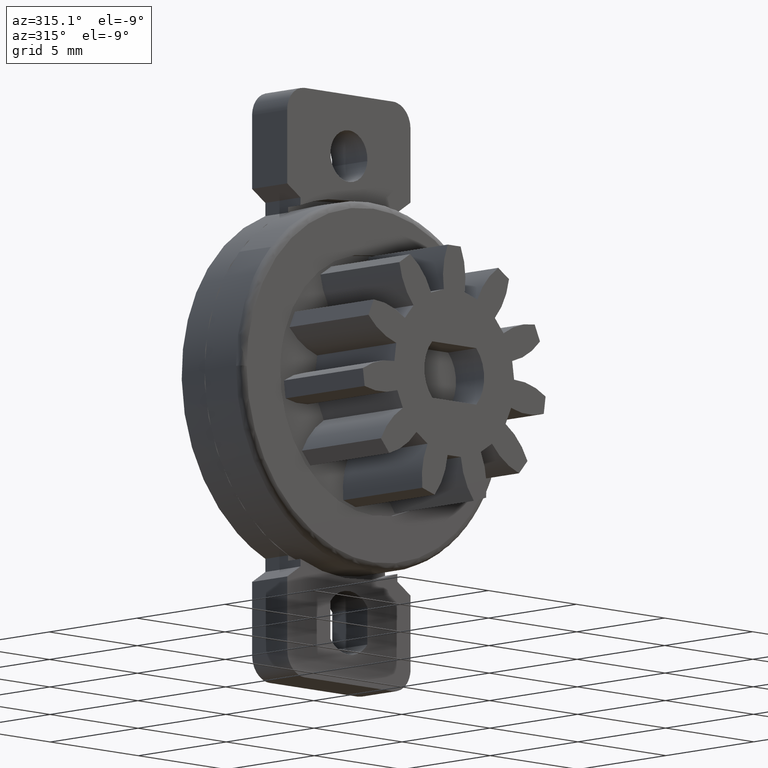
[diagram: clean part render]
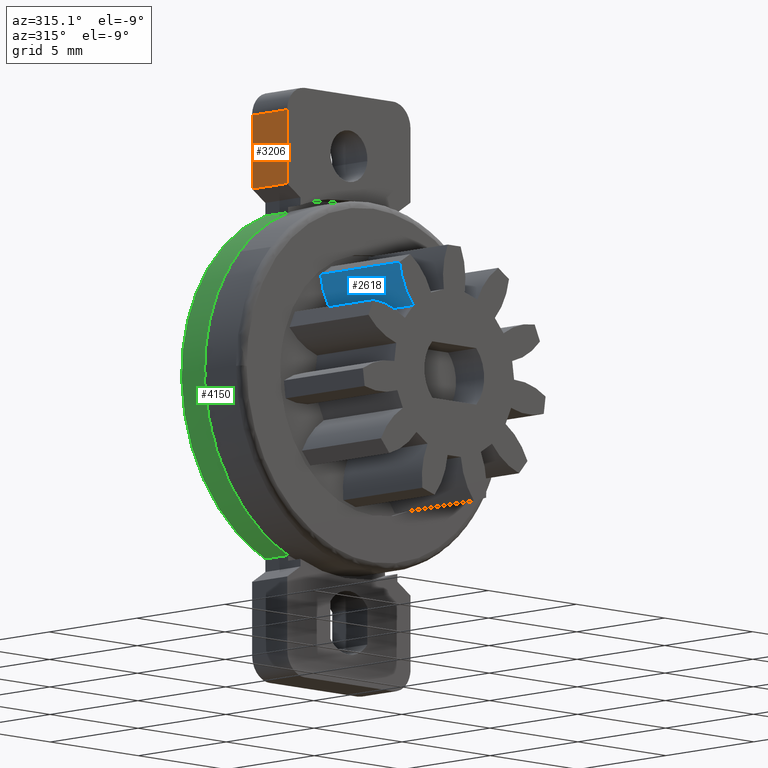
[diagram: same view with three faces highlighted in distinct colors, each labeled with its STEP entity id]
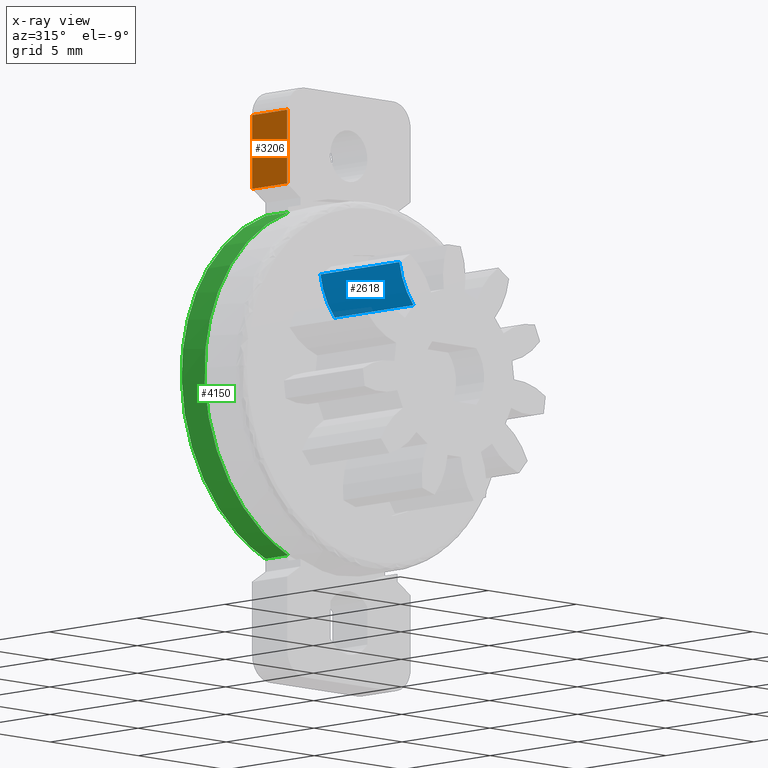
[diagram: x-ray of the same camera — body ghosted, the three highlighted faces saturated]
A machine part, auxiliary view with three faces highlighted in distinct colors.
The next image is the same camera in x-ray (body ghosted, the three faces saturated) — at least one of them is partly hidden behind the body in this view.
Their STEP definitions:

[orange] entity #3206 — the highlighted face is a freeform B-spline surface patch.
#3171=CARTESIAN_POINT('',(-3.500000000000000,-2.099899996123612,7.850150005814582));
#3172=CARTESIAN_POINT('',(-3.500000000000000,-2.099899996123612,11.149850074651690));
#3173=CARTESIAN_POINT('',(-3.500000000000000,0.099900049767792,7.850150005814582));
#3174=CARTESIAN_POINT('',(-3.500000000000000,0.099900049767792,11.149850074651690));
#3175=B_SPLINE_SURFACE_WITH_KNOTS('',1,1,((#3171,#3173),(#3172,#3174)),.UNSPECIFIED.,.F.,.F.,.U.,(2,2),(2,2),(0.0,3.299700068837108),(0.0,2.199800045891404),.UNSPECIFIED.);
#3176=CARTESIAN_POINT('',(-3.500000000000000,0.0,8.0));
#3177=VERTEX_POINT('',#3176);
#3178=CARTESIAN_POINT('',(-3.500000000000000,0.0,11.0));
#3179=VERTEX_POINT('',#3178);
#3180=CARTESIAN_POINT('',(-3.500000000000000,0.0,8.0));
#3181=CARTESIAN_POINT('',(-3.500000000000000,0.0,11.0));
#3182=QUASI_UNIFORM_CURVE('',1,(#3180,#3181),.UNSPECIFIED.,.F.,.U.);
#3183=EDGE_CURVE('',#3177,#3179,#3182,.T.);
#3184=ORIENTED_EDGE('',*,*,#3183,.F.);
#3185=CARTESIAN_POINT('',(-3.500000000000000,-2.0,8.0));
#3186=VERTEX_POINT('',#3185);
#3187=CARTESIAN_POINT('',(-3.500000000000000,-2.0,8.0));
#3188=CARTESIAN_POINT('',(-3.500000000000000,0.0,8.0));
#3189=QUASI_UNIFORM_CURVE('',1,(#3187,#3188),.UNSPECIFIED.,.F.,.U.);
#3190=EDGE_CURVE('',#3186,#3177,#3189,.T.);
#3191=ORIENTED_EDGE('',*,*,#3190,.F.);
#3192=CARTESIAN_POINT('',(-3.500000000000000,-2.0,11.0));
#3193=VERTEX_POINT('',#3192);
#3194=CARTESIAN_POINT('',(-3.500000000000000,-2.0,8.0));
#3195=CARTESIAN_POINT('',(-3.500000000000000,-2.0,11.0));
#3196=QUASI_UNIFORM_CURVE('',1,(#3194,#3195),.UNSPECIFIED.,.F.,.U.);
#3197=EDGE_CURVE('',#3186,#3193,#3196,.T.);
#3198=ORIENTED_EDGE('',*,*,#3197,.T.);
#3199=CARTESIAN_POINT('',(-3.500000000000000,-2.0,11.0));
#3200=CARTESIAN_POINT('',(-3.500000000000000,0.0,11.0));
#3201=QUASI_UNIFORM_CURVE('',1,(#3199,#3200),.UNSPECIFIED.,.F.,.U.);
#3202=EDGE_CURVE('',#3193,#3179,#3201,.T.);
#3203=ORIENTED_EDGE('',*,*,#3202,.T.);
#3204=EDGE_LOOP('',(#3184,#3191,#3198,#3203));
#3205=FACE_OUTER_BOUND('',#3204,.T.);
#3206=ADVANCED_FACE('',(#3205),#3175,.T.);

[blue] entity #2618 — the highlighted face is a freeform B-spline surface patch.
#479=CARTESIAN_POINT('',(-3.109634960589925,-8.0,4.167753640976990));
#480=VERTEX_POINT('',#479);
#494=CARTESIAN_POINT('',(-2.306931985027925,-8.0,2.497611822612775));
#495=VERTEX_POINT('',#494);
#496=CARTESIAN_POINT('',(-3.109634960589926,-8.0,4.167753640976989));
#497=CARTESIAN_POINT('',(-2.964505654421323,-8.0,3.209537316642833));
#498=CARTESIAN_POINT('',(-2.306931998105389,-8.0,2.497611810533708));
#506=(BOUNDED_CURVE()B_SPLINE_CURVE(2,(#496,#497,#498),.UNSPECIFIED.,.F.,.U.)CURVE()GEOMETRIC_REPRESENTATION_ITEM()QUASI_UNIFORM_CURVE()RATIONAL_B_SPLINE_CURVE((1.0,0.956011273868735,1.0))REPRESENTATION_ITEM(''));
#507=EDGE_CURVE('',#480,#495,#506,.T.);
#1573=CARTESIAN_POINT('',(-2.306931985027925,-3.499999999999950,2.497611822612775));
#1574=VERTEX_POINT('',#1573);
#1588=CARTESIAN_POINT('',(-3.109634960589925,-3.499999999999950,4.167753640976990));
#1589=VERTEX_POINT('',#1588);
#1590=CARTESIAN_POINT('',(-3.109634960589926,-3.499999999999950,4.167753640976989));
#1591=CARTESIAN_POINT('',(-2.964505654421323,-3.499999999999950,3.209537316642833));
#1592=CARTESIAN_POINT('',(-2.306931998105389,-3.499999999999950,2.497611810533708));
#1600=(BOUNDED_CURVE()B_SPLINE_CURVE(2,(#1590,#1591,#1592),.UNSPECIFIED.,.F.,.U.)CURVE()GEOMETRIC_REPRESENTATION_ITEM()QUASI_UNIFORM_CURVE()RATIONAL_B_SPLINE_CURVE((1.0,0.956011273868735,1.0))REPRESENTATION_ITEM(''));
#1601=EDGE_CURVE('',#1589,#1574,#1600,.T.);
#2584=CARTESIAN_POINT('',(-2.306931985027925,-3.499999999999950,2.497611822612775));
#2585=CARTESIAN_POINT('',(-2.306931985027925,-8.0,2.497611822612775));
#2586=QUASI_UNIFORM_CURVE('',1,(#2584,#2585),.UNSPECIFIED.,.F.,.U.);
#2587=EDGE_CURVE('',#1574,#495,#2586,.T.);
#2594=CARTESIAN_POINT('',(-2.243476555713130,-3.387499999999950,2.430889493081121));
#2595=CARTESIAN_POINT('',(-2.243476555713130,-8.115312500000002,2.430889493081121));
#2596=CARTESIAN_POINT('',(-2.992876346796459,-3.387499999999949,3.196215515068058));
#2597=CARTESIAN_POINT('',(-2.992876346796459,-8.115312500000002,3.196215515068058));
#2598=CARTESIAN_POINT('',(-3.122159948389973,-3.387499999999949,4.259516844496876));
#2599=CARTESIAN_POINT('',(-3.122159948389973,-8.115312500000002,4.259516844496876));
#2607=(BOUNDED_SURFACE()B_SPLINE_SURFACE(1,2,((#2594,#2596,#2598),(#2595,#2597,#2599)),.UNSPECIFIED.,.F.,.F.,.U.)B_SPLINE_SURFACE_WITH_KNOTS((2,2),(3,3),(0.0,4.727812500000052),(0.0,2.083975211491679),.UNSPECIFIED.)GEOMETRIC_REPRESENTATION_ITEM()RATIONAL_B_SPLINE_SURFACE(((0.997786540914082,0.942072450817485,0.991757776564649),(0.997786540914082,0.942072450817485,0.991757776564649)))REPRESENTATION_ITEM('')SURFACE());
#2608=ORIENTED_EDGE('',*,*,#507,.F.);
#2609=CARTESIAN_POINT('',(-3.109634960589925,-3.499999999999950,4.167753640976990));
#2610=CARTESIAN_POINT('',(-3.109634960589925,-8.0,4.167753640976990));
#2611=QUASI_UNIFORM_CURVE('',1,(#2609,#2610),.UNSPECIFIED.,.F.,.U.);
#2612=EDGE_CURVE('',#1589,#480,#2611,.T.);
#2613=ORIENTED_EDGE('',*,*,#2612,.F.);
#2614=ORIENTED_EDGE('',*,*,#1601,.T.);
#2615=ORIENTED_EDGE('',*,*,#2587,.T.);
#2616=EDGE_LOOP('',(#2608,#2613,#2614,#2615));
#2617=FACE_OUTER_BOUND('',#2616,.T.);
#2618=ADVANCED_FACE('',(#2617),#2607,.T.);

[green] entity #4150 — the highlighted face is a freeform B-spline surface patch.
#3572=CARTESIAN_POINT('',(-2.750000000000000,0.0,6.977642868476430));
#3573=VERTEX_POINT('',#3572);
#3574=CARTESIAN_POINT('',(-2.750000000000000,0.0,-6.977642868476430));
#3575=VERTEX_POINT('',#3574);
#3576=CARTESIAN_POINT('',(-2.750000000000000,0.0,6.977642868476430));
#3577=CARTESIAN_POINT('',(-3.086682025978337,0.0,6.844970874117615));
#3578=CARTESIAN_POINT('',(-3.582522653245725,0.0,6.606761246216620));
#3579=CARTESIAN_POINT('',(-4.296236635317846,0.0,6.161753059004457));
#3580=CARTESIAN_POINT('',(-4.890536066434009,0.0,5.706907583476005));
#3581=CARTESIAN_POINT('',(-5.446955649694584,0.0,5.172387301706844));
#3582=CARTESIAN_POINT('',(-5.941846180619490,0.0,4.596320966823802));
#3583=CARTESIAN_POINT('',(-6.485738611625177,0.0,3.821022966260096));
#3584=CARTESIAN_POINT('',(-6.984704249582792,0.0,2.825473978249185));
#3585=CARTESIAN_POINT('',(-7.329325026413267,0.0,1.706723541538354));
#3586=CARTESIAN_POINT('',(-7.489719588763409,0.0,0.689667188116554));
#3587=CARTESIAN_POINT('',(-7.516769961528138,0.0,-0.362696766478908));
#3588=CARTESIAN_POINT('',(-7.411746656760244,0.0,-1.258250913345645));
#3589=CARTESIAN_POINT('',(-7.214432757934902,0.0,-2.087879604064331));
#3590=CARTESIAN_POINT('',(-6.953520177027715,0.0,-2.863500598909426));
#3591=CARTESIAN_POINT('',(-6.561032495673210,0.0,-3.674765363883549));
#3592=CARTESIAN_POINT('',(-6.051098432041781,0.0,-4.458750859032165));
#3593=CARTESIAN_POINT('',(-5.469685179934102,0.0,-5.161675596491676));
#3594=CARTESIAN_POINT('',(-4.836941568730457,0.0,-5.752683556408615));
#3595=CARTESIAN_POINT('',(-3.946055369336286,0.0,-6.414960976382835));
#3596=CARTESIAN_POINT('',(-3.260494319309568,0.0,-6.776569213581414));
#3597=CARTESIAN_POINT('',(-2.750000000000000,0.0,-6.977642868476430));
#3598=B_SPLINE_CURVE_WITH_KNOTS('',3,(#3576,#3577,#3578,#3579,#3580,#3581,#3582,#3583,#3584,#3585,#3586,#3587,#3588,#3589,#3590,#3591,#3592,#3593,#3594,#3595,#3596,#3597),.UNSPECIFIED.,.F.,.U.,(4,1,1,1,1,1,1,1,1,1,1,1,1,1,1,1,1,1,1,4),(0.000000023477831,1.085634696486636,1.645972464827146,2.521485385591165,3.326964316076792,3.957339483686498,4.797838700052106,6.163648191348258,7.284313169496535,8.299922742949834,9.245459062401684,10.436172656125990,10.996503231740620,11.801980053099580,12.887623828195951,13.693100530174050,14.603641417802960,15.619246376122760,16.284643092806451,17.930607071667801),.UNSPECIFIED.);
#3599=EDGE_CURVE('',#3573,#3575,#3598,.T.);
#3936=CARTESIAN_POINT('',(-2.750000000000000,-1.300000000000080,6.977642868476430));
#3937=VERTEX_POINT('',#3936);
#3947=CARTESIAN_POINT('',(-2.750000000000000,0.0,6.977642868476430));
#3948=CARTESIAN_POINT('',(-2.750000000000000,-1.300000000000080,6.977642868476430));
#3949=QUASI_UNIFORM_CURVE('',1,(#3947,#3948),.UNSPECIFIED.,.F.,.U.);
#3950=EDGE_CURVE('',#3573,#3937,#3949,.T.);
#4082=CARTESIAN_POINT('',(-2.750000000000000,-1.299999999999968,-6.977642868476430));
#4083=VERTEX_POINT('',#4082);
#4089=CARTESIAN_POINT('',(-2.750000000000000,0.0,-6.977642868476430));
#4090=CARTESIAN_POINT('',(-2.750000000000000,-1.299999999999968,-6.977642868476430));
#4091=QUASI_UNIFORM_CURVE('',1,(#4089,#4090),.UNSPECIFIED.,.F.,.U.);
#4092=EDGE_CURVE('',#3575,#4083,#4091,.T.);
#4101=CARTESIAN_POINT('',(-2.563897821772290,0.032500000000002,-7.048150676561283));
#4102=CARTESIAN_POINT('',(-2.563897821772290,-1.333312500000082,-7.048150676561283));
#4103=CARTESIAN_POINT('',(-7.637840268981881,0.032500000000002,-5.202408355606019));
#4104=CARTESIAN_POINT('',(-7.637840268981881,-1.333312500000082,-5.202408355606019));
#4105=CARTESIAN_POINT('',(-7.497464729435864,0.032500000000002,0.194993925200715));
#4106=CARTESIAN_POINT('',(-7.497464729435864,-1.333312500000082,0.194993925200715));
#4107=CARTESIAN_POINT('',(-7.357089189889845,0.032500000000002,5.592396206007449));
#4108=CARTESIAN_POINT('',(-7.357089189889845,-1.333312500000082,5.592396206007449));
#4109=CARTESIAN_POINT('',(-2.194063117993597,0.032500000000002,7.171895637435069));
#4110=CARTESIAN_POINT('',(-2.194063117993597,-1.333312500000082,7.171895637435069));
#4118=(BOUNDED_SURFACE()B_SPLINE_SURFACE(1,2,((#4101,#4103,#4105,#4107,#4109),(#4102,#4104,#4106,#4108,#4110)),.UNSPECIFIED.,.F.,.F.,.U.)B_SPLINE_SURFACE_WITH_KNOTS((2,2),(3,2,3),(0.0,1.0),(0.0,9.675282458026350,19.350564916052701),.UNSPECIFIED.)GEOMETRIC_REPRESENTATION_ITEM()RATIONAL_B_SPLINE_SURFACE(((1.0,0.811573981965012,1.0,0.811573981965012,1.0),(1.0,0.811573981965012,1.0,0.811573981965012,1.0)))REPRESENTATION_ITEM('')SURFACE());
#4119=ORIENTED_EDGE('',*,*,#4092,.T.);
#4120=CARTESIAN_POINT('',(-2.750000000000000,-1.300000000000080,6.977642868476430));
#4121=CARTESIAN_POINT('',(-3.032374312124416,-1.300000000000080,6.866361074381008));
#4122=CARTESIAN_POINT('',(-3.615394568206594,-1.300000000000086,6.594639688758997));
#4123=CARTESIAN_POINT('',(-4.376527255672863,-1.300000000000068,6.112623718575700));
#4124=CARTESIAN_POINT('',(-5.056210606090573,-1.300000000000093,5.558917778506719));
#4125=CARTESIAN_POINT('',(-5.615236034271441,-1.300000000000078,4.993590730370229));
#4126=CARTESIAN_POINT('',(-6.146725660390709,-1.300000000000065,4.326031502129125));
#4127=CARTESIAN_POINT('',(-6.642199247200923,-1.300000000000091,3.532230160197055));
#4128=CARTESIAN_POINT('',(-7.079019638322621,-1.300000000000080,2.560843443417059));
#4129=CARTESIAN_POINT('',(-7.341177795229544,-1.300000000000081,1.625086664401216));
#4130=CARTESIAN_POINT('',(-7.471875800130159,-1.300000000000057,0.770321634512280));
#4131=CARTESIAN_POINT('',(-7.514433138012214,-1.300000000000196,0.011735881681097));
#4132=CARTESIAN_POINT('',(-7.472411670308085,-1.300000000000023,-0.805614011765153));
#4133=CARTESIAN_POINT('',(-7.318343787257850,-1.300000000000114,-1.740038361175607));
#4134=CARTESIAN_POINT('',(-7.044669527779071,-1.300000000000069,-2.635822206715601));
#4135=CARTESIAN_POINT('',(-6.681335589921893,-1.300000000000082,-3.433781349594653));
#4136=CARTESIAN_POINT('',(-6.300446213022797,-1.300000000000080,-4.090903824059438));
#4137=CARTESIAN_POINT('',(-5.870499541466998,-1.300000000000084,-4.688877165410934));
#4138=CARTESIAN_POINT('',(-5.265229390390873,-1.300000000000066,-5.370589003846815));
#4139=CARTESIAN_POINT('',(-4.602791126666529,-1.300000000000122,-5.947257312548785));
#4140=CARTESIAN_POINT('',(-3.728950328278646,-1.300000000000010,-6.532597132685730));
#4141=CARTESIAN_POINT('',(-3.140992027350199,-1.300000000000156,-6.823587572382432));
#4142=CARTESIAN_POINT('',(-2.750000000000000,-1.299999999999968,-6.977642868476430));
#4143=B_SPLINE_CURVE_WITH_KNOTS('',3,(#4120,#4121,#4122,#4123,#4124,#4125,#4126,#4127,#4128,#4129,#4130,#4131,#4132,#4133,#4134,#4135,#4136,#4137,#4138,#4139,#4140,#4141,#4142),.UNSPECIFIED.,.F.,.U.,(4,1,1,1,1,1,1,1,1,1,1,1,1,1,1,1,1,1,1,1,4),(0.000000023469411,0.910533943076679,1.926137325448956,2.696589082828680,3.537092001503648,4.307547853293135,5.253108318848526,6.338750798741328,7.494442571443610,8.159832533440666,8.930295462972753,9.770777170295984,10.611273316835240,11.766954733745839,12.572434222261011,13.237830912561799,14.043308319809650,14.778744441525010,15.969449015133179,16.669872252961689,17.930607071667801),.UNSPECIFIED.);
#4144=EDGE_CURVE('',#3937,#4083,#4143,.T.);
#4145=ORIENTED_EDGE('',*,*,#4144,.F.);
#4146=ORIENTED_EDGE('',*,*,#3950,.F.);
#4147=ORIENTED_EDGE('',*,*,#3599,.T.);
#4148=EDGE_LOOP('',(#4119,#4145,#4146,#4147));
#4149=FACE_OUTER_BOUND('',#4148,.T.);
#4150=ADVANCED_FACE('',(#4149),#4118,.T.);